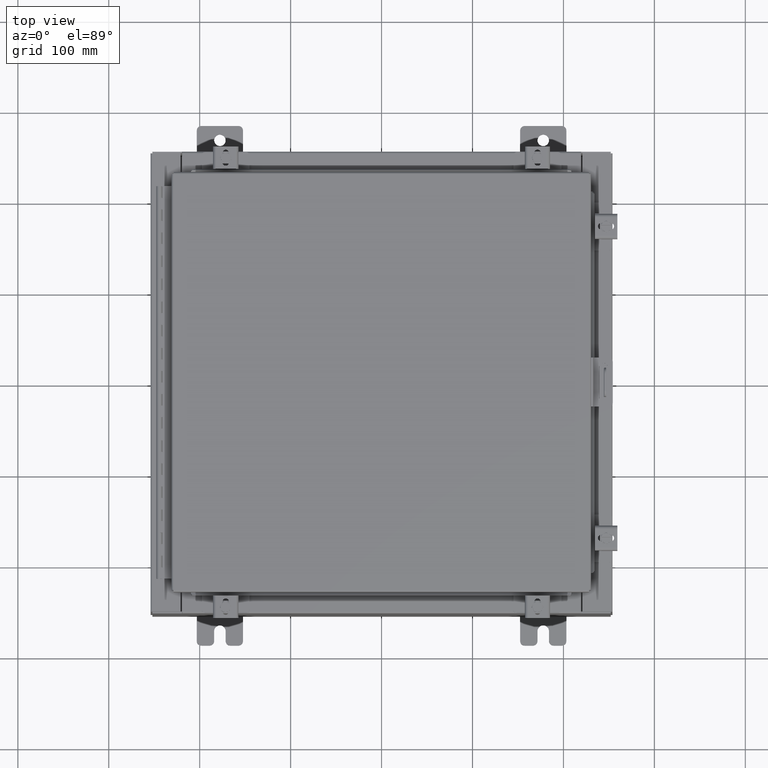
[diagram: clean part render]
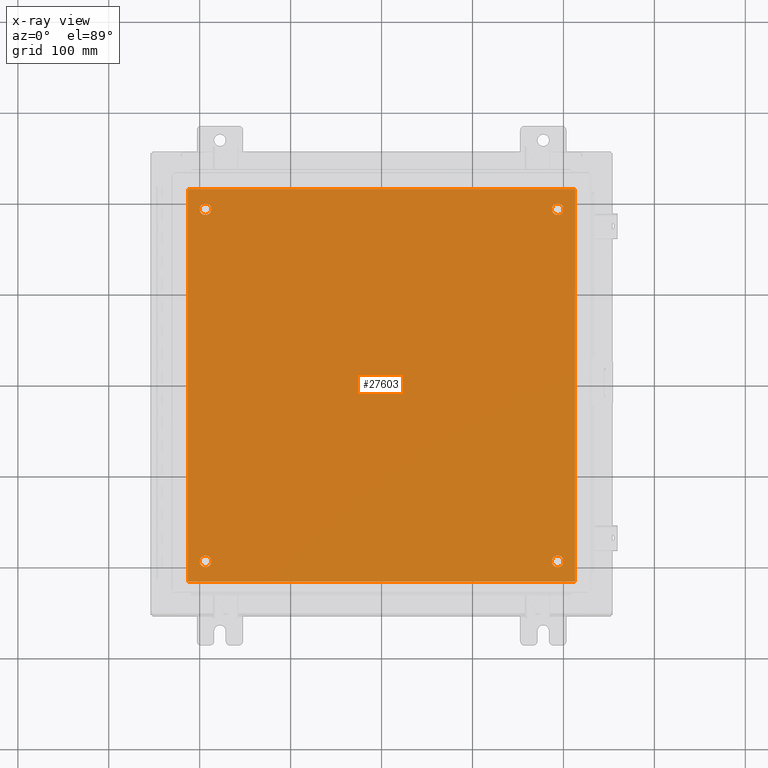
[diagram: x-ray — body ghosted, one internal face saturated and labeled with its STEP entity id]
A machine part, top view, then the same camera in x-ray: the body is ghosted and one INTERNAL B-rep face — a face not visible from any outside direction — is saturated and labeled: STEP entity #27603.
In plain terms, the highlighted planar face has unit normal (0, 0, -1).
Its self-contained STEP definition (entity closure, byte-faithful):
#62 = AXIS2_PLACEMENT_3D ( 'NONE', #8575, #24470, #10883 ) ;
#124 = EDGE_LOOP ( 'NONE', ( #22234, #12114 ) ) ;
#142 = CARTESIAN_POINT ( 'NONE',  ( 7.875000000000000900, 7.625000000000000900, -0.1039999999999999800 ) ) ;
#254 = CIRCLE ( 'NONE', #331, 0.2499999999999987000 ) ;
#331 = AXIS2_PLACEMENT_3D ( 'NONE', #16799, #3186, #19062 ) ;
#604 = DIRECTION ( 'NONE',  ( -1.000000000000000000, 0.0000000000000000000, 0.0000000000000000000 ) ) ;
#957 = VERTEX_POINT ( 'NONE', #6715 ) ;
#1071 = CIRCLE ( 'NONE', #4890, 0.2499999999999987000 ) ;
#1782 = EDGE_LOOP ( 'NONE', ( #6893, #12264 ) ) ;
#1975 = VERTEX_POINT ( 'NONE', #7659 ) ;
#2529 = AXIS2_PLACEMENT_3D ( 'NONE', #21522, #7890, #23793 ) ;
#3017 = VECTOR ( 'NONE', #20656, 39.37007874015748100 ) ;
#3062 = VERTEX_POINT ( 'NONE', #27531 ) ;
#3186 = DIRECTION ( 'NONE',  ( -0.0000000000000000000, -0.0000000000000000000, 1.000000000000000000 ) ) ;
#3242 = ORIENTED_EDGE ( 'NONE', *, *, #6632, .F. ) ;
#3444 = VECTOR ( 'NONE', #19789, 39.37007874015748100 ) ;
#3695 = CIRCLE ( 'NONE', #62, 0.2499999999999987000 ) ;
#3894 = ORIENTED_EDGE ( 'NONE', *, *, #25976, .F. ) ;
#3986 = FACE_BOUND ( 'NONE', #1782, .T. ) ;
#4337 = DIRECTION ( 'NONE',  ( -0.0000000000000000000, -0.0000000000000000000, 1.000000000000000000 ) ) ;
#4391 = DIRECTION ( 'NONE',  ( -0.0000000000000000000, -0.0000000000000000000, 1.000000000000000000 ) ) ;
#4408 = CARTESIAN_POINT ( 'NONE',  ( -7.875000000000001800, -7.625000000000000900, -0.1039999999999999800 ) ) ;
#4414 = CARTESIAN_POINT ( 'NONE',  ( 7.375000000000003600, 7.625000000000000900, -0.1039999999999999800 ) ) ;
#4423 = VERTEX_POINT ( 'NONE', #15501 ) ;
#4841 = VECTOR ( 'NONE', #17786, 39.37007874015748100 ) ;
#4890 = AXIS2_PLACEMENT_3D ( 'NONE', #5504, #21409, #7777 ) ;
#5162 = LINE ( 'NONE', #18343, #3017 ) ;
#5504 = CARTESIAN_POINT ( 'NONE',  ( 7.625000000000001800, 7.625000000000000900, -0.1039999999999999800 ) ) ;
#5582 = EDGE_LOOP ( 'NONE', ( #3894, #19510, #3242, #19770 ) ) ;
#6169 = CARTESIAN_POINT ( 'NONE',  ( 8.383000000000000900, -8.499999999999998200, -0.1039999999999998100 ) ) ;
#6398 = AXIS2_PLACEMENT_3D ( 'NONE', #20922, #7290, #23203 ) ;
#6463 = VERTEX_POINT ( 'NONE', #19060 ) ;
#6501 = AXIS2_PLACEMENT_3D ( 'NONE', #21117, #9710, #18917 ) ;
#6632 = EDGE_CURVE ( 'NONE', #18972, #4423, #13264, .T. ) ;
#6715 = CARTESIAN_POINT ( 'NONE',  ( -7.875000000000001800, 7.625000000000000900, -0.1039999999999999800 ) ) ;
#6788 = CIRCLE ( 'NONE', #18811, 0.2499999999999998100 ) ;
#6893 = ORIENTED_EDGE ( 'NONE', *, *, #13663, .T. ) ;
#7005 = CARTESIAN_POINT ( 'NONE',  ( 7.875000000000000900, -7.625000000000000900, -0.1039999999999999800 ) ) ;
#7290 = DIRECTION ( 'NONE',  ( -0.0000000000000000000, -0.0000000000000000000, 1.000000000000000000 ) ) ;
#7331 = VERTEX_POINT ( 'NONE', #4414 ) ;
#7659 = CARTESIAN_POINT ( 'NONE',  ( 7.375000000000003600, -7.625000000000000900, -0.1039999999999999800 ) ) ;
#7777 = DIRECTION ( 'NONE',  ( -1.000000000000000000, 0.0000000000000000000, 0.0000000000000000000 ) ) ;
#7857 = EDGE_CURVE ( 'NONE', #27881, #6463, #6788, .T. ) ;
#7890 = DIRECTION ( 'NONE',  ( -0.0000000000000000000, -0.0000000000000000000, 1.000000000000000000 ) ) ;
#7989 = VERTEX_POINT ( 'NONE', #7005 ) ;
#8206 = EDGE_LOOP ( 'NONE', ( #21726, #14127 ) ) ;
#8575 = CARTESIAN_POINT ( 'NONE',  ( 7.625000000000001800, 7.625000000000000900, -0.1039999999999999800 ) ) ;
#9338 = FACE_BOUND ( 'NONE', #124, .T. ) ;
#9710 = DIRECTION ( 'NONE',  ( 0.0000000000000000000, 0.0000000000000000000, -1.000000000000000000 ) ) ;
#10435 = VECTOR ( 'NONE', #10919, 39.37007874015748100 ) ;
#10883 = DIRECTION ( 'NONE',  ( -1.000000000000000000, 0.0000000000000000000, 0.0000000000000000000 ) ) ;
#10919 = DIRECTION ( 'NONE',  ( -1.000000000000000000, -0.0000000000000000000, -0.0000000000000000000 ) ) ;
#11919 = EDGE_CURVE ( 'NONE', #20924, #18972, #27617, .T. ) ;
#12114 = ORIENTED_EDGE ( 'NONE', *, *, #15007, .T. ) ;
#12264 = ORIENTED_EDGE ( 'NONE', *, *, #21684, .T. ) ;
#12690 = EDGE_LOOP ( 'NONE', ( #28627, #13553 ) ) ;
#12734 = AXIS2_PLACEMENT_3D ( 'NONE', #27874, #14256, #604 ) ;
#13264 = LINE ( 'NONE', #26813, #10435 ) ;
#13553 = ORIENTED_EDGE ( 'NONE', *, *, #18293, .T. ) ;
#13663 = EDGE_CURVE ( 'NONE', #29217, #7331, #3695, .T. ) ;
#14127 = ORIENTED_EDGE ( 'NONE', *, *, #7857, .T. ) ;
#14256 = DIRECTION ( 'NONE',  ( -0.0000000000000000000, -0.0000000000000000000, 1.000000000000000000 ) ) ;
#14350 = PLANE ( 'NONE',  #6501 ) ;
#15007 = EDGE_CURVE ( 'NONE', #1975, #7989, #24263, .T. ) ;
#15354 = FACE_BOUND ( 'NONE', #12690, .T. ) ;
#15501 = CARTESIAN_POINT ( 'NONE',  ( -8.382999999999999100, 8.500000000000000000, -0.1039999999999998100 ) ) ;
#15522 = CARTESIAN_POINT ( 'NONE',  ( -8.382999999999999100, 8.500000000000000000, -0.1039999999999998100 ) ) ;
#16357 = VERTEX_POINT ( 'NONE', #17249 ) ;
#16799 = CARTESIAN_POINT ( 'NONE',  ( 7.625000000000001800, -7.625000000000000900, -0.1039999999999999800 ) ) ;
#16931 = LINE ( 'NONE', #15522, #4841 ) ;
#17249 = CARTESIAN_POINT ( 'NONE',  ( -7.375000000000001800, 7.625000000000000900, -0.1039999999999999800 ) ) ;
#17786 = DIRECTION ( 'NONE',  ( 0.0000000000000000000, -1.000000000000000000, 0.0000000000000000000 ) ) ;
#17930 = CARTESIAN_POINT ( 'NONE',  ( -7.625000000000001800, -7.625000000000000900, -0.1039999999999999800 ) ) ;
#17982 = CARTESIAN_POINT ( 'NONE',  ( -7.625000000000001800, -7.625000000000000900, -0.1039999999999999800 ) ) ;
#18293 = EDGE_CURVE ( 'NONE', #957, #16357, #24345, .T. ) ;
#18343 = CARTESIAN_POINT ( 'NONE',  ( -8.500000000000000000, -8.499999999999998200, -0.1039999999999999800 ) ) ;
#18811 = AXIS2_PLACEMENT_3D ( 'NONE', #17930, #4337, #20239 ) ;
#18917 = DIRECTION ( 'NONE',  ( -1.000000000000000000, 0.0000000000000000000, -0.0000000000000000000 ) ) ;
#18972 = VERTEX_POINT ( 'NONE', #26149 ) ;
#19060 = CARTESIAN_POINT ( 'NONE',  ( -7.375000000000001800, -7.625000000000000900, -0.1039999999999999800 ) ) ;
#19062 = DIRECTION ( 'NONE',  ( -1.000000000000000000, 0.0000000000000000000, 0.0000000000000000000 ) ) ;
#19510 = ORIENTED_EDGE ( 'NONE', *, *, #25135, .F. ) ;
#19770 = ORIENTED_EDGE ( 'NONE', *, *, #11919, .F. ) ;
#19789 = DIRECTION ( 'NONE',  ( 0.0000000000000000000, 1.000000000000000000, 0.0000000000000000000 ) ) ;
#20239 = DIRECTION ( 'NONE',  ( -1.000000000000000000, 0.0000000000000000000, 0.0000000000000000000 ) ) ;
#20286 = DIRECTION ( 'NONE',  ( -1.000000000000000000, 0.0000000000000000000, 0.0000000000000000000 ) ) ;
#20656 = DIRECTION ( 'NONE',  ( 1.000000000000000000, 0.0000000000000000000, 0.0000000000000000000 ) ) ;
#20857 = CIRCLE ( 'NONE', #12734, 0.2499999999999998100 ) ;
#20922 = CARTESIAN_POINT ( 'NONE',  ( 7.625000000000001800, -7.625000000000000900, -0.1039999999999999800 ) ) ;
#20924 = VERTEX_POINT ( 'NONE', #22660 ) ;
#21117 = CARTESIAN_POINT ( 'NONE',  ( 0.0000000000000000000, 0.0000000000000000000, -0.1039999999999999800 ) ) ;
#21409 = DIRECTION ( 'NONE',  ( -0.0000000000000000000, -0.0000000000000000000, 1.000000000000000000 ) ) ;
#21425 = FACE_OUTER_BOUND ( 'NONE', #5582, .T. ) ;
#21522 = CARTESIAN_POINT ( 'NONE',  ( -7.625000000000001800, 7.625000000000000900, -0.1039999999999999800 ) ) ;
#21684 = EDGE_CURVE ( 'NONE', #7331, #29217, #1071, .T. ) ;
#21726 = ORIENTED_EDGE ( 'NONE', *, *, #22049, .T. ) ;
#22049 = EDGE_CURVE ( 'NONE', #6463, #27881, #27409, .T. ) ;
#22234 = ORIENTED_EDGE ( 'NONE', *, *, #23673, .T. ) ;
#22660 = CARTESIAN_POINT ( 'NONE',  ( 8.383000000000000900, -8.499999999999998200, -0.1039999999999999800 ) ) ;
#23203 = DIRECTION ( 'NONE',  ( -1.000000000000000000, 0.0000000000000000000, 0.0000000000000000000 ) ) ;
#23673 = EDGE_CURVE ( 'NONE', #7989, #1975, #254, .T. ) ;
#23793 = DIRECTION ( 'NONE',  ( -1.000000000000000000, 0.0000000000000000000, 0.0000000000000000000 ) ) ;
#24263 = CIRCLE ( 'NONE', #6398, 0.2499999999999987000 ) ;
#24345 = CIRCLE ( 'NONE', #2529, 0.2499999999999998100 ) ;
#24470 = DIRECTION ( 'NONE',  ( -0.0000000000000000000, -0.0000000000000000000, 1.000000000000000000 ) ) ;
#24779 = EDGE_CURVE ( 'NONE', #16357, #957, #20857, .T. ) ;
#25135 = EDGE_CURVE ( 'NONE', #4423, #3062, #16931, .T. ) ;
#25976 = EDGE_CURVE ( 'NONE', #3062, #20924, #5162, .T. ) ;
#26149 = CARTESIAN_POINT ( 'NONE',  ( 8.383000000000000900, 8.500000000000000000, -0.1039999999999999800 ) ) ;
#26813 = CARTESIAN_POINT ( 'NONE',  ( -8.500000000000000000, 8.500000000000000000, -0.1039999999999999800 ) ) ;
#27409 = CIRCLE ( 'NONE', #27746, 0.2499999999999998100 ) ;
#27456 = FACE_BOUND ( 'NONE', #8206, .T. ) ;
#27531 = CARTESIAN_POINT ( 'NONE',  ( -8.382999999999999100, -8.499999999999998200, -0.1039999999999998100 ) ) ;
#27603 = ADVANCED_FACE ( 'NONE', ( #27456, #9338, #3986, #15354, #21425 ), #14350, .T. ) ;
#27617 = LINE ( 'NONE', #6169, #3444 ) ;
#27746 = AXIS2_PLACEMENT_3D ( 'NONE', #17982, #4391, #20286 ) ;
#27874 = CARTESIAN_POINT ( 'NONE',  ( -7.625000000000001800, 7.625000000000000900, -0.1039999999999999800 ) ) ;
#27881 = VERTEX_POINT ( 'NONE', #4408 ) ;
#28627 = ORIENTED_EDGE ( 'NONE', *, *, #24779, .T. ) ;
#29217 = VERTEX_POINT ( 'NONE', #142 ) ;